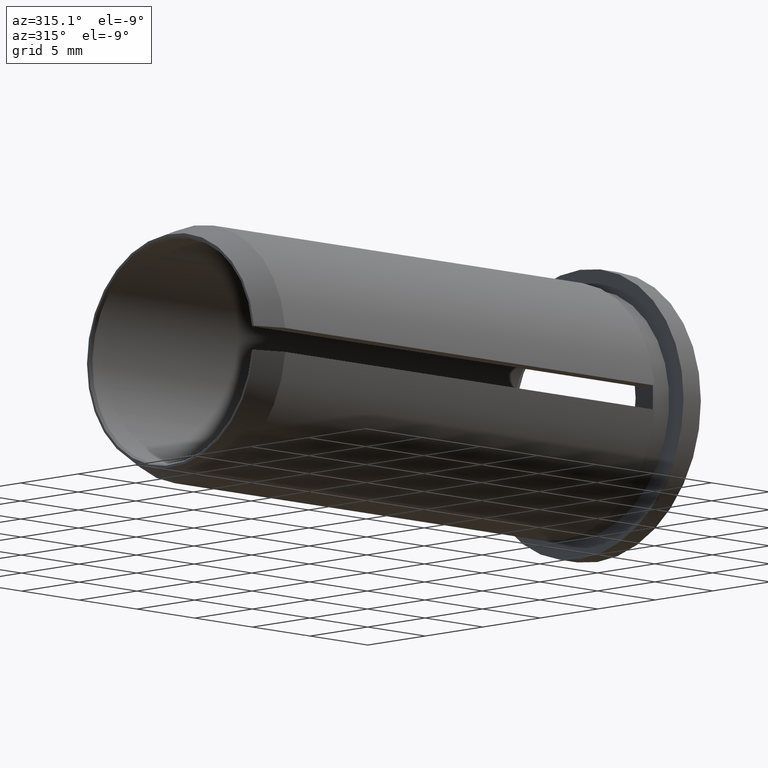
[diagram: clean part render]
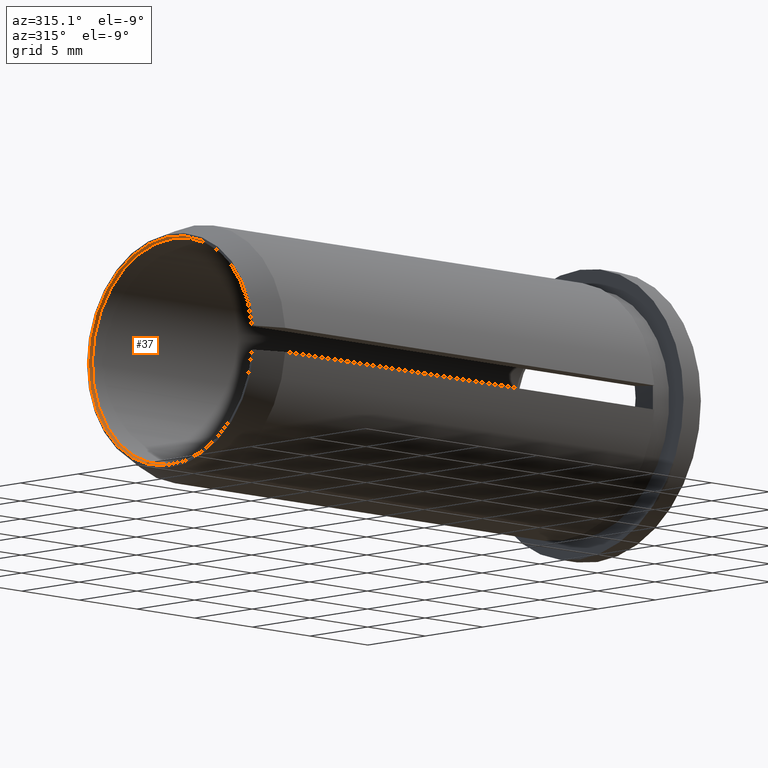
[diagram: same view with one face highlighted and labeled with its STEP entity id]
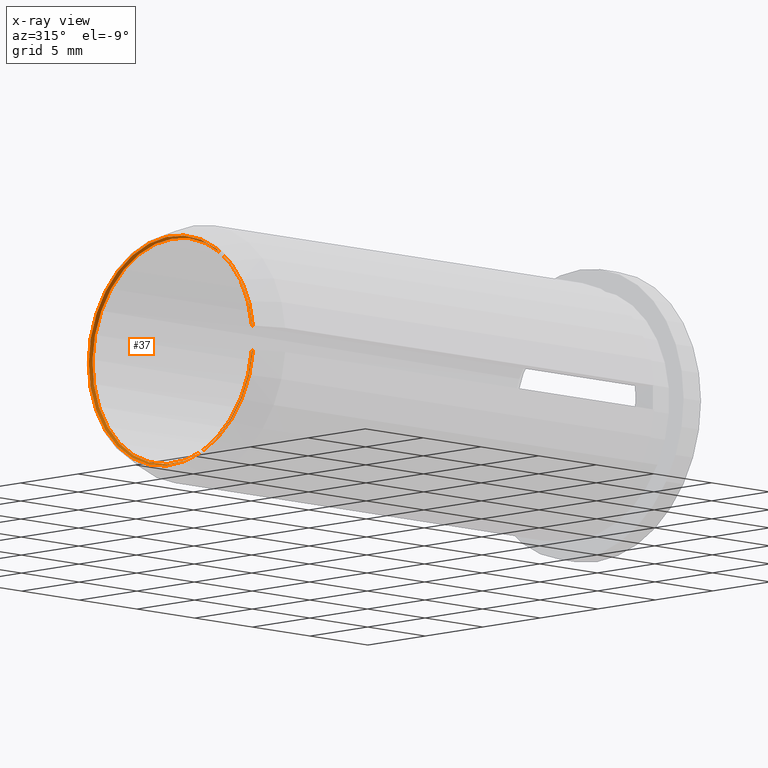
[diagram: x-ray of the same camera — body ghosted, the highlighted face saturated]
A machine part, auxiliary view. The second image highlights one B-rep face of the part: STEP entity #37.
The next image is the same camera in x-ray: the body ghosted, the highlighted face saturated — about 0% of this face is hidden behind the body in this view.
In plain terms, the highlighted conical surface has half-angle 30 deg.
Its self-contained STEP definition (entity closure, byte-faithful):
#1 = AXIS2_PLACEMENT_3D ( 'NONE', #269, #412, #409 ) ;
#15 = VERTEX_POINT ( 'NONE', #203 ) ;
#34 = EDGE_LOOP ( 'NONE', ( #287, #90, #319, #293 ) ) ;
#37 = ADVANCED_FACE ( 'NONE', ( #187 ), #383, .F. ) ;
#57 = CARTESIAN_POINT ( 'NONE',  ( -36.79999999999999700, -6.959705453537528000, 0.7500000000000000000 ) ) ;
#62 = EDGE_CURVE ( 'NONE', #86, #100, #154, .T. ) ;
#64 = B_SPLINE_CURVE_WITH_KNOTS ( 'NONE', 3,
 ( #243, #311, #382, #57 ),
 .UNSPECIFIED., .F., .F.,
 ( 4, 4 ),
 ( 0.008159521160765015300, 0.008390790686471119900 ),
 .UNSPECIFIED. ) ;
#73 = CIRCLE ( 'NONE', #424, 7.115470053837925400 ) ;
#85 = DIRECTION ( 'NONE',  ( -1.000000000000000000, -0.0000000000000000000, -0.0000000000000000000 ) ) ;
#86 = VERTEX_POINT ( 'NONE', #340 ) ;
#90 = ORIENTED_EDGE ( 'NONE', *, *, #159, .T. ) ;
#91 = EDGE_CURVE ( 'NONE', #240, #86, #64, .T. ) ;
#92 = CARTESIAN_POINT ( 'NONE',  ( -36.79999999999999700, -6.959705453537528000, -0.7500000000000000000 ) ) ;
#100 = VERTEX_POINT ( 'NONE', #92 ) ;
#111 = EDGE_CURVE ( 'NONE', #240, #15, #73, .T. ) ;
#121 = CARTESIAN_POINT ( 'NONE',  ( -37.00000000000000000, 0.0000000000000000000, 0.0000000000000000000 ) ) ;
#154 = CIRCLE ( 'NONE', #1, 7.000000000000000000 ) ;
#159 = EDGE_CURVE ( 'NONE', #15, #100, #349, .T. ) ;
#187 = FACE_OUTER_BOUND ( 'NONE', #34, .T. ) ;
#203 = CARTESIAN_POINT ( 'NONE',  ( -37.00000000000000000, -7.075833101979178300, -0.7500000000000000000 ) ) ;
#210 = CARTESIAN_POINT ( 'NONE',  ( -36.93333177780486700, -7.037126569982963700, -0.7500000000000000000 ) ) ;
#240 = VERTEX_POINT ( 'NONE', #323 ) ;
#243 = CARTESIAN_POINT ( 'NONE',  ( -37.00000000000000000, -7.075833101979178300, 0.7500000000000000000 ) ) ;
#269 = CARTESIAN_POINT ( 'NONE',  ( -36.79999999999999700, 0.0000000000000000000, 0.0000000000000000000 ) ) ;
#280 = CARTESIAN_POINT ( 'NONE',  ( -36.86666508525750900, -6.998417398494318300, -0.7500000000000000000 ) ) ;
#287 = ORIENTED_EDGE ( 'NONE', *, *, #111, .T. ) ;
#293 = ORIENTED_EDGE ( 'NONE', *, *, #91, .F. ) ;
#306 = DIRECTION ( 'NONE',  ( 0.0000000000000000000, 0.0000000000000000000, 1.000000000000000000 ) ) ;
#311 = CARTESIAN_POINT ( 'NONE',  ( -36.93333177780486700, -7.037126569982963700, 0.7500000000000000000 ) ) ;
#312 = DIRECTION ( 'NONE',  ( -1.000000000000000000, -0.0000000000000000000, -0.0000000000000000000 ) ) ;
#319 = ORIENTED_EDGE ( 'NONE', *, *, #62, .F. ) ;
#323 = CARTESIAN_POINT ( 'NONE',  ( -37.00000000000000000, -7.075833101979178300, 0.7500000000000000000 ) ) ;
#335 = CARTESIAN_POINT ( 'NONE',  ( -37.00000000000000000, 0.0000000000000000000, 0.0000000000000000000 ) ) ;
#340 = CARTESIAN_POINT ( 'NONE',  ( -36.79999999999999700, -6.959705453537528000, 0.7500000000000000000 ) ) ;
#341 = CARTESIAN_POINT ( 'NONE',  ( -37.00000000000000000, -7.075833101979178300, -0.7500000000000000000 ) ) ;
#344 = CARTESIAN_POINT ( 'NONE',  ( -36.79999999999999700, -6.959705453537528000, -0.7500000000000000000 ) ) ;
#349 = B_SPLINE_CURVE_WITH_KNOTS ( 'NONE', 3,
 ( #341, #210, #280, #344 ),
 .UNSPECIFIED., .F., .F.,
 ( 4, 4 ),
 ( 0.008159521160765015300, 0.008390790686471119900 ),
 .UNSPECIFIED. ) ;
#367 = DIRECTION ( 'NONE',  ( 0.0000000000000000000, 0.0000000000000000000, 1.000000000000000000 ) ) ;
#382 = CARTESIAN_POINT ( 'NONE',  ( -36.86666508525750900, -6.998417398494318300, 0.7500000000000000000 ) ) ;
#383 = CONICAL_SURFACE ( 'NONE', #396, 7.115470053837925400, 0.5235987755983005900 ) ;
#396 = AXIS2_PLACEMENT_3D ( 'NONE', #335, #85, #367 ) ;
#409 = DIRECTION ( 'NONE',  ( 0.0000000000000000000, 0.0000000000000000000, 1.000000000000000000 ) ) ;
#412 = DIRECTION ( 'NONE',  ( -1.000000000000000000, -0.0000000000000000000, -0.0000000000000000000 ) ) ;
#424 = AXIS2_PLACEMENT_3D ( 'NONE', #121, #312, #306 ) ;